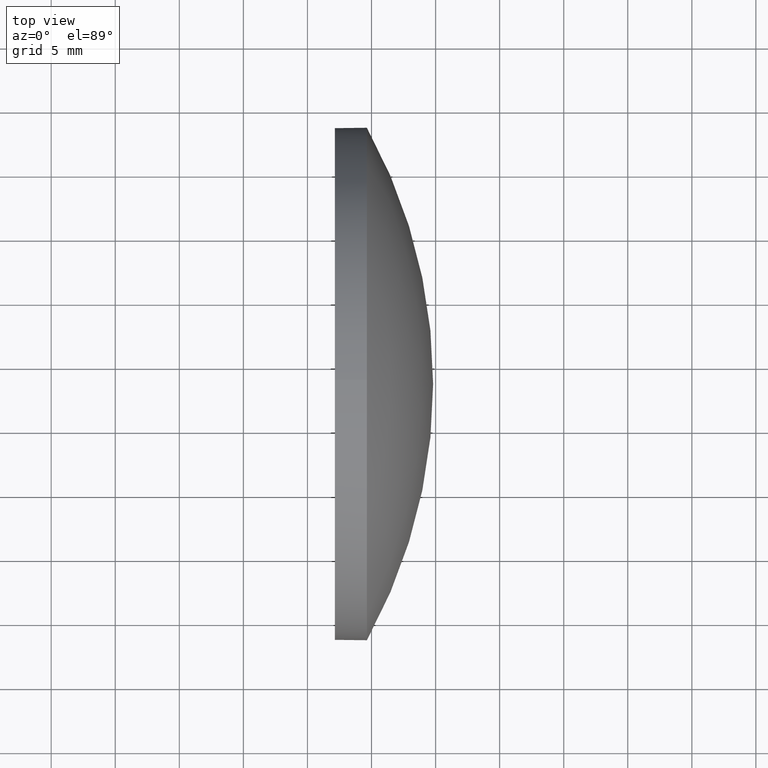
[diagram: clean part render]
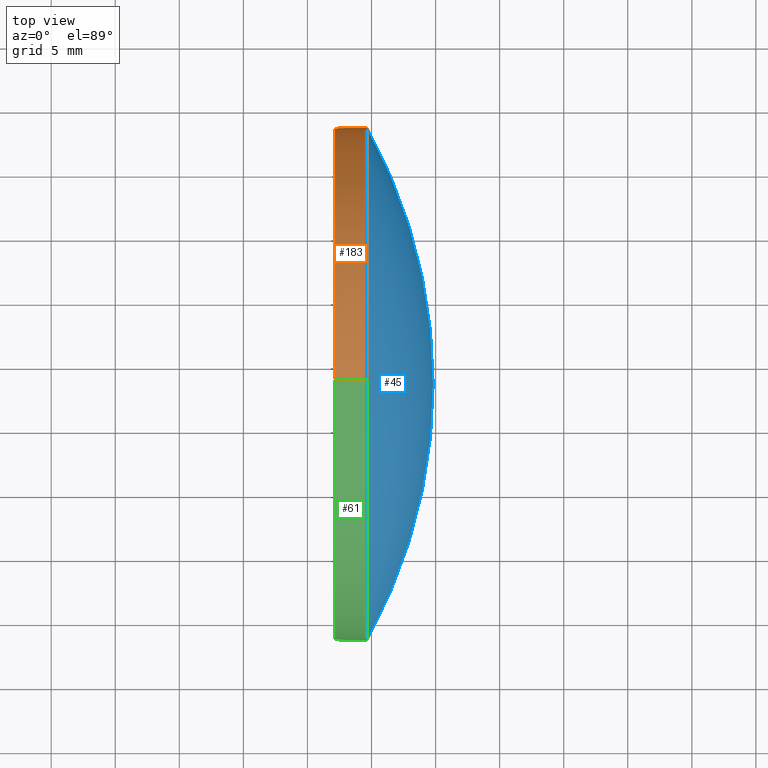
[diagram: same view with three faces highlighted in distinct colors, each labeled with its STEP entity id]
A machine part, top view with three faces highlighted in distinct colors.
Their STEP definitions:

[orange] entity #183 — the highlighted cylindrical surface (partial cylindrical patch) has radius 20 mm, axis along (-1, -0, -0).
#8 = CARTESIAN_POINT ( 'NONE',  ( 499.6385831728898700, 143.4929616837899900, -19.99999999999998900 ) ) ;
#10 = CARTESIAN_POINT ( 'NONE',  ( 487.6320858531166800, 143.4929616837899900, 19.99999999999998900 ) ) ;
#11 = DIRECTION ( 'NONE',  ( -1.000000000000000000, -0.0000000000000000000, -0.0000000000000000000 ) ) ;
#12 = AXIS2_PLACEMENT_3D ( 'NONE', #104, #11, #179 ) ;
#14 = VERTEX_POINT ( 'NONE', #122 ) ;
#16 = VECTOR ( 'NONE', #23, 1000.000000000000000 ) ;
#23 = DIRECTION ( 'NONE',  ( -1.000000000000000000, -0.0000000000000000000, -0.0000000000000000000 ) ) ;
#28 = VERTEX_POINT ( 'NONE', #68 ) ;
#35 = CARTESIAN_POINT ( 'NONE',  ( 499.6385831728898700, 163.4929616837899900, 0.0000000000000000000 ) ) ;
#36 = EDGE_CURVE ( 'NONE', #28, #14, #51, .T. ) ;
#51 = CIRCLE ( 'NONE', #101, 19.99999999999998900 ) ;
#56 = CARTESIAN_POINT ( 'NONE',  ( 487.6320858531166800, 143.4929616837899900, -19.99999999999998900 ) ) ;
#57 = CIRCLE ( 'NONE', #165, 19.99999999999998900 ) ;
#59 = DIRECTION ( 'NONE',  ( 0.0000000000000000000, 0.0000000000000000000, 1.000000000000000000 ) ) ;
#60 = ORIENTED_EDGE ( 'NONE', *, *, #150, .T. ) ;
#65 = AXIS2_PLACEMENT_3D ( 'NONE', #157, #143, #59 ) ;
#68 = CARTESIAN_POINT ( 'NONE',  ( 497.1385831728898700, 143.4929616837899900, 19.99999999999998900 ) ) ;
#82 = FACE_OUTER_BOUND ( 'NONE', #84, .T. ) ;
#84 = EDGE_LOOP ( 'NONE', ( #173, #185, #167, #98, #60 ) ) ;
#85 = LINE ( 'NONE', #10, #16 ) ;
#90 = DIRECTION ( 'NONE',  ( 0.0000000000000000000, 0.0000000000000000000, 1.000000000000000000 ) ) ;
#91 = DIRECTION ( 'NONE',  ( -1.000000000000000000, -0.0000000000000000000, -0.0000000000000000000 ) ) ;
#97 = CARTESIAN_POINT ( 'NONE',  ( 499.6385831728898700, 143.4929616837899900, 0.0000000000000000000 ) ) ;
#98 = ORIENTED_EDGE ( 'NONE', *, *, #171, .F. ) ;
#100 = EDGE_CURVE ( 'NONE', #181, #14, #120, .T. ) ;
#101 = AXIS2_PLACEMENT_3D ( 'NONE', #125, #91, #90 ) ;
#104 = CARTESIAN_POINT ( 'NONE',  ( 499.6385831728898700, 143.4929616837899900, 0.0000000000000000000 ) ) ;
#111 = CYLINDRICAL_SURFACE ( 'NONE', #65, 19.99999999999998900 ) ;
#120 = LINE ( 'NONE', #56, #135 ) ;
#122 = CARTESIAN_POINT ( 'NONE',  ( 497.1385831728898700, 143.4929616837899900, -19.99999999999998900 ) ) ;
#123 = VERTEX_POINT ( 'NONE', #35 ) ;
#125 = CARTESIAN_POINT ( 'NONE',  ( 497.1385831728898700, 143.4929616837899900, 0.0000000000000000000 ) ) ;
#130 = DIRECTION ( 'NONE',  ( 0.0000000000000000000, 0.0000000000000000000, 1.000000000000000000 ) ) ;
#135 = VECTOR ( 'NONE', #182, 1000.000000000000000 ) ;
#136 = VERTEX_POINT ( 'NONE', #180 ) ;
#142 = DIRECTION ( 'NONE',  ( -1.000000000000000000, -0.0000000000000000000, -0.0000000000000000000 ) ) ;
#143 = DIRECTION ( 'NONE',  ( -1.000000000000000000, -0.0000000000000000000, -0.0000000000000000000 ) ) ;
#148 = EDGE_CURVE ( 'NONE', #123, #181, #57, .T. ) ;
#150 = EDGE_CURVE ( 'NONE', #136, #123, #154, .T. ) ;
#154 = CIRCLE ( 'NONE', #12, 19.99999999999998900 ) ;
#157 = CARTESIAN_POINT ( 'NONE',  ( 487.6320858531166800, 143.4929616837899900, 0.0000000000000000000 ) ) ;
#165 = AXIS2_PLACEMENT_3D ( 'NONE', #97, #142, #130 ) ;
#167 = ORIENTED_EDGE ( 'NONE', *, *, #36, .F. ) ;
#171 = EDGE_CURVE ( 'NONE', #136, #28, #85, .T. ) ;
#173 = ORIENTED_EDGE ( 'NONE', *, *, #148, .T. ) ;
#179 = DIRECTION ( 'NONE',  ( 0.0000000000000000000, 0.0000000000000000000, 1.000000000000000000 ) ) ;
#180 = CARTESIAN_POINT ( 'NONE',  ( 499.6385831728898700, 143.4929616837899900, 19.99999999999998900 ) ) ;
#181 = VERTEX_POINT ( 'NONE', #8 ) ;
#182 = DIRECTION ( 'NONE',  ( -1.000000000000000000, -0.0000000000000000000, -0.0000000000000000000 ) ) ;
#183 = ADVANCED_FACE ( 'NONE', ( #82 ), #111, .T. ) ;
#185 = ORIENTED_EDGE ( 'NONE', *, *, #100, .T. ) ;

[blue] entity #45 — the highlighted spherical surface has radius 41.2697 mm.
#1 = CARTESIAN_POINT ( 'NONE',  ( 463.5388636371064900, 143.4929616837899600, 0.0000000000000000000 ) ) ;
#7 = EDGE_CURVE ( 'NONE', #62, #123, #168, .T. ) ;
#11 = DIRECTION ( 'NONE',  ( -1.000000000000000000, -0.0000000000000000000, -0.0000000000000000000 ) ) ;
#12 = AXIS2_PLACEMENT_3D ( 'NONE', #104, #11, #179 ) ;
#13 = AXIS2_PLACEMENT_3D ( 'NONE', #66, #176, #124 ) ;
#18 = CARTESIAN_POINT ( 'NONE',  ( 463.5388636371064900, 143.4929616837899600, 0.0000000000000000000 ) ) ;
#21 = ORIENTED_EDGE ( 'NONE', *, *, #126, .F. ) ;
#24 = DIRECTION ( 'NONE',  ( -1.000000000000000000, -0.0000000000000000000, -0.0000000000000000000 ) ) ;
#29 = EDGE_CURVE ( 'NONE', #62, #37, #96, .T. ) ;
#35 = CARTESIAN_POINT ( 'NONE',  ( 499.6385831728898700, 163.4929616837899900, 0.0000000000000000000 ) ) ;
#37 = VERTEX_POINT ( 'NONE', #49 ) ;
#45 = ADVANCED_FACE ( 'NONE', ( #48 ), #174, .T. ) ;
#46 = ORIENTED_EDGE ( 'NONE', *, *, #7, .T. ) ;
#48 = FACE_OUTER_BOUND ( 'NONE', #75, .T. ) ;
#49 = CARTESIAN_POINT ( 'NONE',  ( 499.6385831728898700, 123.4929616837899900, -2.449293598294705700E-015 ) ) ;
#54 = DIRECTION ( 'NONE',  ( -0.0000000000000000000, 0.0000000000000000000, -1.000000000000000000 ) ) ;
#62 = VERTEX_POINT ( 'NONE', #141 ) ;
#66 = CARTESIAN_POINT ( 'NONE',  ( 463.5388636371064900, 143.4929616837899600, 0.0000000000000000000 ) ) ;
#75 = EDGE_LOOP ( 'NONE', ( #175, #46, #86, #21 ) ) ;
#79 = CARTESIAN_POINT ( 'NONE',  ( 499.6385831728898700, 143.4929616837899900, 0.0000000000000000000 ) ) ;
#86 = ORIENTED_EDGE ( 'NONE', *, *, #150, .F. ) ;
#96 = CIRCLE ( 'NONE', #119, 41.26971953578340200 ) ;
#103 = DIRECTION ( 'NONE',  ( 0.0000000000000000000, 1.224646799147353200E-016, -1.000000000000000000 ) ) ;
#104 = CARTESIAN_POINT ( 'NONE',  ( 499.6385831728898700, 143.4929616837899900, 0.0000000000000000000 ) ) ;
#119 = AXIS2_PLACEMENT_3D ( 'NONE', #18, #103, #139 ) ;
#123 = VERTEX_POINT ( 'NONE', #35 ) ;
#124 = DIRECTION ( 'NONE',  ( 1.000000000000000000, 0.0000000000000000000, 0.0000000000000000000 ) ) ;
#126 = EDGE_CURVE ( 'NONE', #37, #136, #170, .T. ) ;
#133 = AXIS2_PLACEMENT_3D ( 'NONE', #79, #24, #160 ) ;
#136 = VERTEX_POINT ( 'NONE', #180 ) ;
#139 = DIRECTION ( 'NONE',  ( 0.0000000000000000000, 1.000000000000000000, 1.224646799147353200E-016 ) ) ;
#141 = CARTESIAN_POINT ( 'NONE',  ( 504.8085831728898800, 143.4929616837899600, 0.0000000000000000000 ) ) ;
#146 = AXIS2_PLACEMENT_3D ( 'NONE', #1, #54, #177 ) ;
#150 = EDGE_CURVE ( 'NONE', #136, #123, #154, .T. ) ;
#154 = CIRCLE ( 'NONE', #12, 19.99999999999998900 ) ;
#160 = DIRECTION ( 'NONE',  ( 0.0000000000000000000, 0.0000000000000000000, 1.000000000000000000 ) ) ;
#168 = CIRCLE ( 'NONE', #13, 41.26971953578340200 ) ;
#170 = CIRCLE ( 'NONE', #133, 19.99999999999998900 ) ;
#174 = SPHERICAL_SURFACE ( 'NONE', #146, 41.26971953578340200 ) ;
#175 = ORIENTED_EDGE ( 'NONE', *, *, #29, .F. ) ;
#176 = DIRECTION ( 'NONE',  ( -0.0000000000000000000, 0.0000000000000000000, 1.000000000000000000 ) ) ;
#177 = DIRECTION ( 'NONE',  ( 0.0000000000000000000, 1.000000000000000000, 0.0000000000000000000 ) ) ;
#179 = DIRECTION ( 'NONE',  ( 0.0000000000000000000, 0.0000000000000000000, 1.000000000000000000 ) ) ;
#180 = CARTESIAN_POINT ( 'NONE',  ( 499.6385831728898700, 143.4929616837899900, 19.99999999999998900 ) ) ;

[green] entity #61 — the highlighted cylindrical surface (partial cylindrical patch) has radius 20 mm, axis along (-1, -0, -0).
#5 = DIRECTION ( 'NONE',  ( -1.000000000000000000, -0.0000000000000000000, -0.0000000000000000000 ) ) ;
#6 = DIRECTION ( 'NONE',  ( -1.000000000000000000, -0.0000000000000000000, -0.0000000000000000000 ) ) ;
#8 = CARTESIAN_POINT ( 'NONE',  ( 499.6385831728898700, 143.4929616837899900, -19.99999999999998900 ) ) ;
#10 = CARTESIAN_POINT ( 'NONE',  ( 487.6320858531166800, 143.4929616837899900, 19.99999999999998900 ) ) ;
#14 = VERTEX_POINT ( 'NONE', #122 ) ;
#16 = VECTOR ( 'NONE', #23, 1000.000000000000000 ) ;
#19 = DIRECTION ( 'NONE',  ( 0.0000000000000000000, 0.0000000000000000000, 1.000000000000000000 ) ) ;
#23 = DIRECTION ( 'NONE',  ( -1.000000000000000000, -0.0000000000000000000, -0.0000000000000000000 ) ) ;
#24 = DIRECTION ( 'NONE',  ( -1.000000000000000000, -0.0000000000000000000, -0.0000000000000000000 ) ) ;
#26 = EDGE_CURVE ( 'NONE', #181, #37, #99, .T. ) ;
#28 = VERTEX_POINT ( 'NONE', #68 ) ;
#31 = CARTESIAN_POINT ( 'NONE',  ( 487.6320858531166800, 143.4929616837899900, 0.0000000000000000000 ) ) ;
#33 = AXIS2_PLACEMENT_3D ( 'NONE', #106, #92, #19 ) ;
#37 = VERTEX_POINT ( 'NONE', #49 ) ;
#38 = ORIENTED_EDGE ( 'NONE', *, *, #100, .F. ) ;
#40 = DIRECTION ( 'NONE',  ( 0.0000000000000000000, 0.0000000000000000000, 1.000000000000000000 ) ) ;
#49 = CARTESIAN_POINT ( 'NONE',  ( 499.6385831728898700, 123.4929616837899900, -2.449293598294705700E-015 ) ) ;
#56 = CARTESIAN_POINT ( 'NONE',  ( 487.6320858531166800, 143.4929616837899900, -19.99999999999998900 ) ) ;
#61 = ADVANCED_FACE ( 'NONE', ( #164 ), #152, .T. ) ;
#68 = CARTESIAN_POINT ( 'NONE',  ( 497.1385831728898700, 143.4929616837899900, 19.99999999999998900 ) ) ;
#79 = CARTESIAN_POINT ( 'NONE',  ( 499.6385831728898700, 143.4929616837899900, 0.0000000000000000000 ) ) ;
#81 = AXIS2_PLACEMENT_3D ( 'NONE', #156, #6, #102 ) ;
#85 = LINE ( 'NONE', #10, #16 ) ;
#87 = ORIENTED_EDGE ( 'NONE', *, *, #26, .T. ) ;
#89 = EDGE_LOOP ( 'NONE', ( #38, #87, #138, #151, #114 ) ) ;
#92 = DIRECTION ( 'NONE',  ( -1.000000000000000000, -0.0000000000000000000, -0.0000000000000000000 ) ) ;
#99 = CIRCLE ( 'NONE', #81, 19.99999999999998900 ) ;
#100 = EDGE_CURVE ( 'NONE', #181, #14, #120, .T. ) ;
#102 = DIRECTION ( 'NONE',  ( 0.0000000000000000000, 0.0000000000000000000, 1.000000000000000000 ) ) ;
#106 = CARTESIAN_POINT ( 'NONE',  ( 497.1385831728898700, 143.4929616837899900, 0.0000000000000000000 ) ) ;
#108 = EDGE_CURVE ( 'NONE', #14, #28, #129, .T. ) ;
#114 = ORIENTED_EDGE ( 'NONE', *, *, #108, .F. ) ;
#120 = LINE ( 'NONE', #56, #135 ) ;
#122 = CARTESIAN_POINT ( 'NONE',  ( 497.1385831728898700, 143.4929616837899900, -19.99999999999998900 ) ) ;
#126 = EDGE_CURVE ( 'NONE', #37, #136, #170, .T. ) ;
#129 = CIRCLE ( 'NONE', #33, 19.99999999999998900 ) ;
#133 = AXIS2_PLACEMENT_3D ( 'NONE', #79, #24, #160 ) ;
#135 = VECTOR ( 'NONE', #182, 1000.000000000000000 ) ;
#136 = VERTEX_POINT ( 'NONE', #180 ) ;
#138 = ORIENTED_EDGE ( 'NONE', *, *, #126, .T. ) ;
#151 = ORIENTED_EDGE ( 'NONE', *, *, #171, .T. ) ;
#152 = CYLINDRICAL_SURFACE ( 'NONE', #153, 19.99999999999998900 ) ;
#153 = AXIS2_PLACEMENT_3D ( 'NONE', #31, #5, #40 ) ;
#156 = CARTESIAN_POINT ( 'NONE',  ( 499.6385831728898700, 143.4929616837899900, 0.0000000000000000000 ) ) ;
#160 = DIRECTION ( 'NONE',  ( 0.0000000000000000000, 0.0000000000000000000, 1.000000000000000000 ) ) ;
#164 = FACE_OUTER_BOUND ( 'NONE', #89, .T. ) ;
#170 = CIRCLE ( 'NONE', #133, 19.99999999999998900 ) ;
#171 = EDGE_CURVE ( 'NONE', #136, #28, #85, .T. ) ;
#180 = CARTESIAN_POINT ( 'NONE',  ( 499.6385831728898700, 143.4929616837899900, 19.99999999999998900 ) ) ;
#181 = VERTEX_POINT ( 'NONE', #8 ) ;
#182 = DIRECTION ( 'NONE',  ( -1.000000000000000000, -0.0000000000000000000, -0.0000000000000000000 ) ) ;